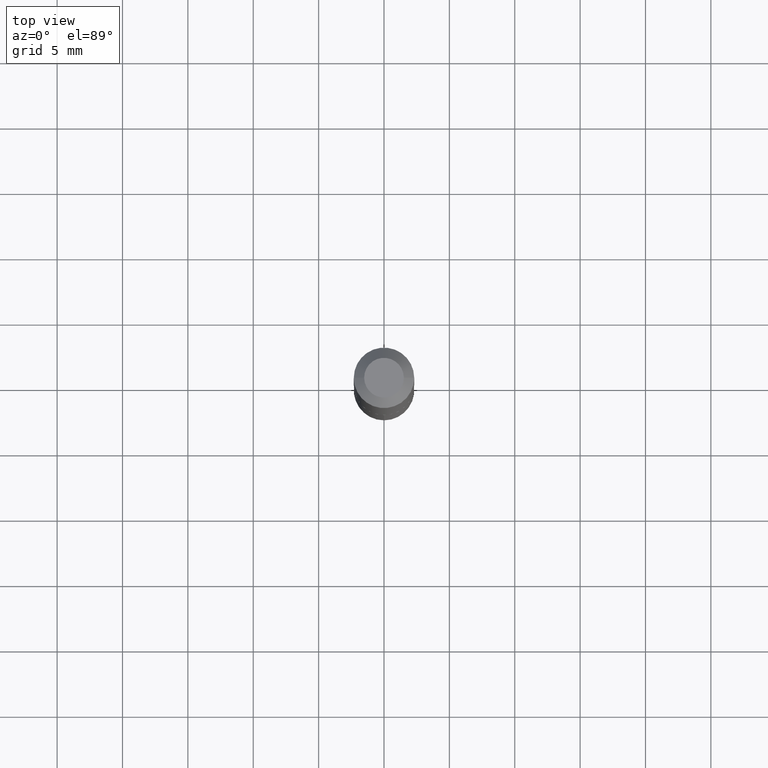
[diagram: clean part render]
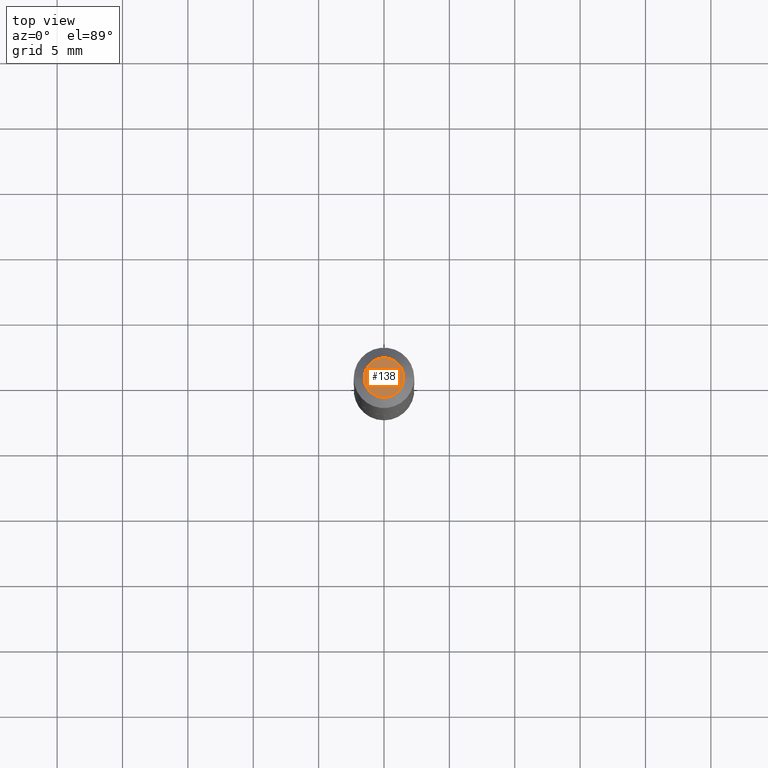
[diagram: same view with one face highlighted and labeled with its STEP entity id]
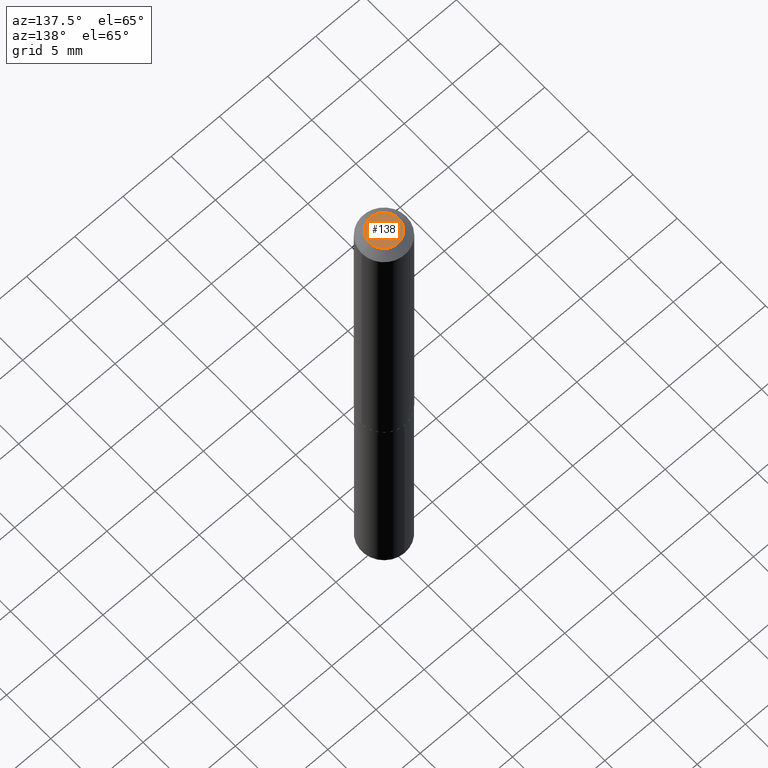
[diagram: same view with one face highlighted and labeled with its STEP entity id]
A machine part, top view. The second image highlights one B-rep face of the part: STEP entity #138.
A second angle (auxiliary view) of the same face is appended — the face is thin or edge-on in the first view.
In plain terms, the highlighted planar face has unit normal (0, -0, -1).
Its self-contained STEP definition (entity closure, byte-faithful):
#52 = AXIS2_PLACEMENT_3D ( 'NONE', #116, #236, #150 ) ;
#98 = ORIENTED_EDGE ( 'NONE', *, *, #131, .T. ) ;
#116 = CARTESIAN_POINT ( 'NONE',  ( 2.246126659432003351E-48, -3.206873584422742284E-34, -9.184850993605184086E-20 ) ) ;
#118 = PLANE ( 'NONE',  #52 ) ;
#122 = CARTESIAN_POINT ( 'NONE',  ( -0.05974999999999999756, 4.717864159111778069E-16, -1.836970198752120845E-19 ) ) ;
#123 = ORIENTED_EDGE ( 'NONE', *, *, #177, .T. ) ;
#130 = EDGE_LOOP ( 'NONE', ( #98, #123 ) ) ;
#131 = EDGE_CURVE ( 'NONE', #351, #222, #168, .T. ) ;
#138 = ADVANCED_FACE ( 'NONE', ( #233 ), #118, .F. ) ;
#144 = CARTESIAN_POINT ( 'NONE',  ( 0.05974999999999999756, -5.716644325014536685E-16, -1.836970198686465412E-19 ) ) ;
#150 = DIRECTION ( 'NONE',  ( -1.000000000000000000, 6.982962677686265922E-15, -4.876176775795935793E-29 ) ) ;
#168 = CIRCLE ( 'NONE', #336, 0.05974999999999999756 ) ;
#173 = DIRECTION ( 'NONE',  ( 1.000000000000000000, -6.982962677686266711E-15, 4.876164187836129365E-29 ) ) ;
#177 = EDGE_CURVE ( 'NONE', #222, #351, #278, .T. ) ;
#212 = AXIS2_PLACEMENT_3D ( 'NONE', #302, #239, #272 ) ;
#222 = VERTEX_POINT ( 'NONE', #144 ) ;
#233 = FACE_OUTER_BOUND ( 'NONE', #130, .T. ) ;
#236 = DIRECTION ( 'NONE',  ( 2.438088387897960049E-29, -3.491481338843145188E-15, -1.000000000000000000 ) ) ;
#239 = DIRECTION ( 'NONE',  ( -2.445468806185136597E-29, 3.491481338843145583E-15, 1.000000000000000000 ) ) ;
#270 = CARTESIAN_POINT ( 'NONE',  ( 4.492253318864006702E-48, -6.413747168845484567E-34, -1.836970198721036817E-19 ) ) ;
#271 = DIRECTION ( 'NONE',  ( -2.445468806185136597E-29, 3.491481338843145583E-15, 1.000000000000000000 ) ) ;
#272 = DIRECTION ( 'NONE',  ( 1.000000000000000000, -6.982962677686266711E-15, 4.876164187836129365E-29 ) ) ;
#278 = CIRCLE ( 'NONE', #212, 0.05974999999999999756 ) ;
#302 = CARTESIAN_POINT ( 'NONE',  ( 4.492253318864006702E-48, -6.413747168845484567E-34, -1.836970198721036817E-19 ) ) ;
#336 = AXIS2_PLACEMENT_3D ( 'NONE', #270, #271, #173 ) ;
#351 = VERTEX_POINT ( 'NONE', #122 ) ;